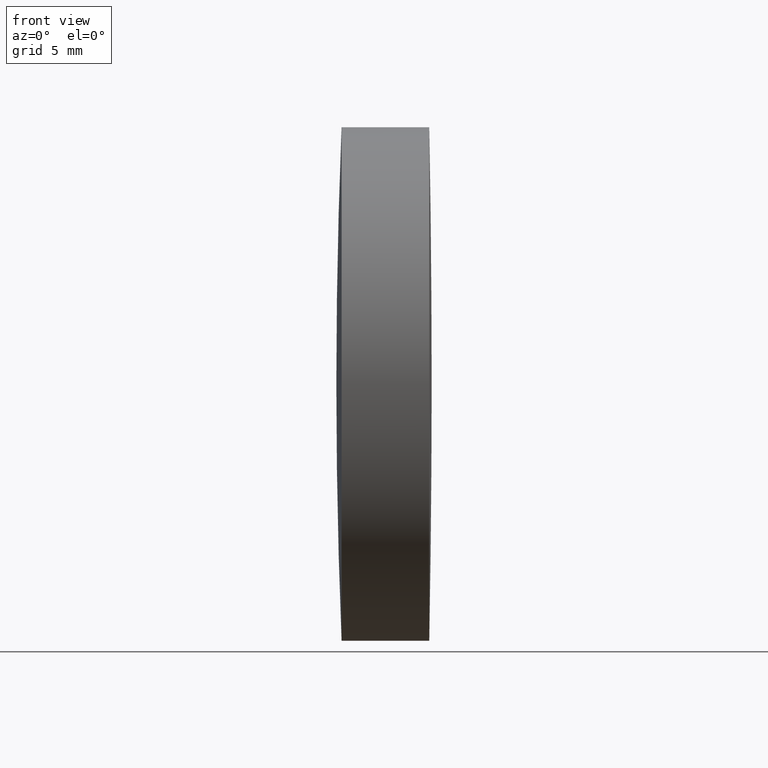
[diagram: clean part render]
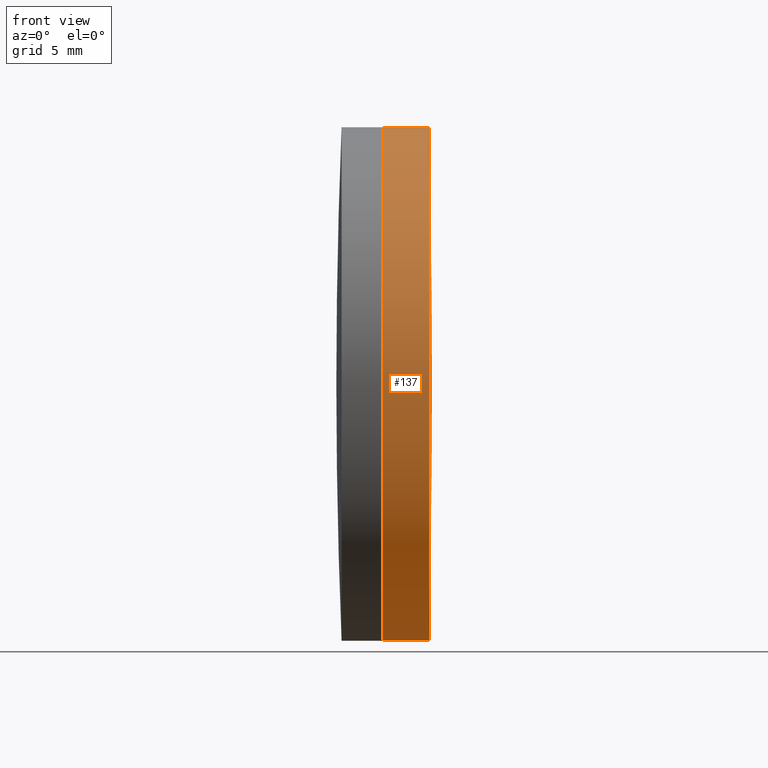
[diagram: same view with one face highlighted and labeled with its STEP entity id]
A machine part, front view. The second image highlights one B-rep face of the part: STEP entity #137.
In plain terms, the highlighted cylindrical surface (partial cylindrical patch) has radius 12.5 mm, axis along (-1, -0, -0).
Its self-contained STEP definition (entity closure, byte-faithful):
#6 = CYLINDRICAL_SURFACE ( 'NONE', #265, 12.49999999999999300 ) ;
#12 = DIRECTION ( 'NONE',  ( -1.000000000000000000, -0.0000000000000000000, -0.0000000000000000000 ) ) ;
#18 = CARTESIAN_POINT ( 'NONE',  ( -0.5519199926577972300, 0.0000000000000000000, 12.49999999999999300 ) ) ;
#21 = ORIENTED_EDGE ( 'NONE', *, *, #57, .F. ) ;
#28 = ORIENTED_EDGE ( 'NONE', *, *, #128, .T. ) ;
#38 = VERTEX_POINT ( 'NONE', #188 ) ;
#46 = EDGE_LOOP ( 'NONE', ( #144, #93, #28, #21 ) ) ;
#57 = EDGE_CURVE ( 'NONE', #212, #302, #125, .T. ) ;
#64 = VECTOR ( 'NONE', #312, 1000.000000000000000 ) ;
#74 = DIRECTION ( 'NONE',  ( -1.000000000000000000, -0.0000000000000000000, -0.0000000000000000000 ) ) ;
#88 = VECTOR ( 'NONE', #12, 1000.000000000000000 ) ;
#90 = VERTEX_POINT ( 'NONE', #297 ) ;
#93 = ORIENTED_EDGE ( 'NONE', *, *, #99, .T. ) ;
#99 = EDGE_CURVE ( 'NONE', #90, #38, #182, .T. ) ;
#105 = AXIS2_PLACEMENT_3D ( 'NONE', #240, #74, #333 ) ;
#125 = CIRCLE ( 'NONE', #245, 12.50000000000005200 ) ;
#128 = EDGE_CURVE ( 'NONE', #38, #302, #305, .T. ) ;
#137 = ADVANCED_FACE ( 'NONE', ( #162 ), #6, .T. ) ;
#144 = ORIENTED_EDGE ( 'NONE', *, *, #183, .F. ) ;
#162 = FACE_OUTER_BOUND ( 'NONE', #46, .T. ) ;
#163 = DIRECTION ( 'NONE',  ( 0.0000000000000000000, 0.0000000000000000000, 1.000000000000000000 ) ) ;
#176 = CARTESIAN_POINT ( 'NONE',  ( -0.5519199926577972300, 1.530808498934190700E-015, -12.49999999999999300 ) ) ;
#182 = CIRCLE ( 'NONE', #105, 12.49999999999993600 ) ;
#183 = EDGE_CURVE ( 'NONE', #90, #212, #217, .T. ) ;
#187 = CARTESIAN_POINT ( 'NONE',  ( 217.4944512575927100, 0.0000000000000000000, 0.0000000000000000000 ) ) ;
#188 = CARTESIAN_POINT ( 'NONE',  ( 219.7630195206821800, 0.0000000000000000000, 12.49999999999993600 ) ) ;
#209 = CARTESIAN_POINT ( 'NONE',  ( 217.4944512575927100, 0.0000000000000000000, 12.50000000000009800 ) ) ;
#212 = VERTEX_POINT ( 'NONE', #280 ) ;
#217 = LINE ( 'NONE', #176, #64 ) ;
#235 = DIRECTION ( 'NONE',  ( -1.000000000000000000, -0.0000000000000000000, -0.0000000000000000000 ) ) ;
#240 = CARTESIAN_POINT ( 'NONE',  ( 219.7630195206821800, 0.0000000000000000000, 0.0000000000000000000 ) ) ;
#245 = AXIS2_PLACEMENT_3D ( 'NONE', #187, #345, #163 ) ;
#249 = DIRECTION ( 'NONE',  ( 0.0000000000000000000, 0.0000000000000000000, 1.000000000000000000 ) ) ;
#265 = AXIS2_PLACEMENT_3D ( 'NONE', #314, #235, #249 ) ;
#280 = CARTESIAN_POINT ( 'NONE',  ( 217.4944512575927100, 1.530808498934203600E-015, -12.50000000000009800 ) ) ;
#297 = CARTESIAN_POINT ( 'NONE',  ( 219.7630195206821800, 1.530808498934187200E-015, -12.49999999999993600 ) ) ;
#302 = VERTEX_POINT ( 'NONE', #209 ) ;
#305 = LINE ( 'NONE', #18, #88 ) ;
#312 = DIRECTION ( 'NONE',  ( -1.000000000000000000, -0.0000000000000000000, -0.0000000000000000000 ) ) ;
#314 = CARTESIAN_POINT ( 'NONE',  ( -0.5519199926577972300, 0.0000000000000000000, 0.0000000000000000000 ) ) ;
#333 = DIRECTION ( 'NONE',  ( 0.0000000000000000000, 0.0000000000000000000, 1.000000000000000000 ) ) ;
#345 = DIRECTION ( 'NONE',  ( -1.000000000000000000, -0.0000000000000000000, -0.0000000000000000000 ) ) ;